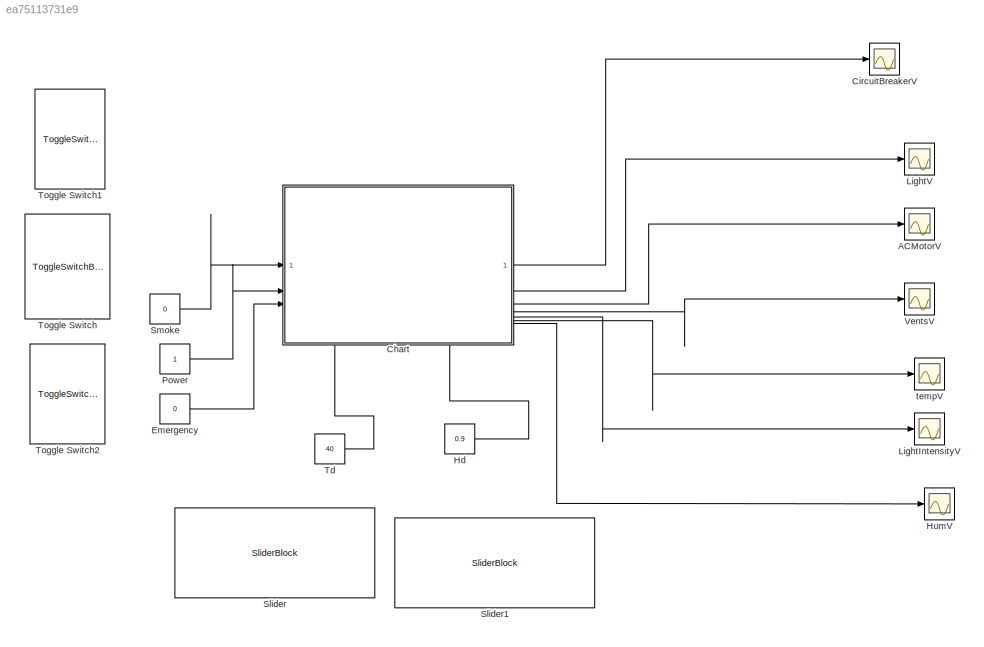
MODEL slx_ea75113731e9
KIND model
CONFIG AbsTol = auto
CONFIG EnableMultiTasking = on
CONFIG FixedStep = 0.01
CONFIG MaxStep = auto
CONFIG MinStep = auto
CONFIG RelTol = 1e-3
CONFIG SampleTimeConstraint = Unconstrained
CONFIG SolverName = ode4
CONFIG StartTime = 0.0
CONFIG StopTime = inf
BLOCK [Scope] ACMotorV
  Floating = off
  NumInputPorts = 1
  ScopeSpecificationString = Simulink.scopes.TimeScopeBlockCfg('CurrentConfiguration', extmgr.ConfigurationSet(extmgr.Configuration('Core','General UI',true),extmgr.Configuration('Core','Source UI',true),extmgr.Configuration('Sources','WiredSimulink',true,'DataLoggingVariableName','ScopeData2'),extmgr.Configuration('Visuals','Time Domain',true,'SerializedDisplays',{struct('MinYLimReal','1156.25','MaxYLimReal','3156.25','YLabe...<+1448ch>
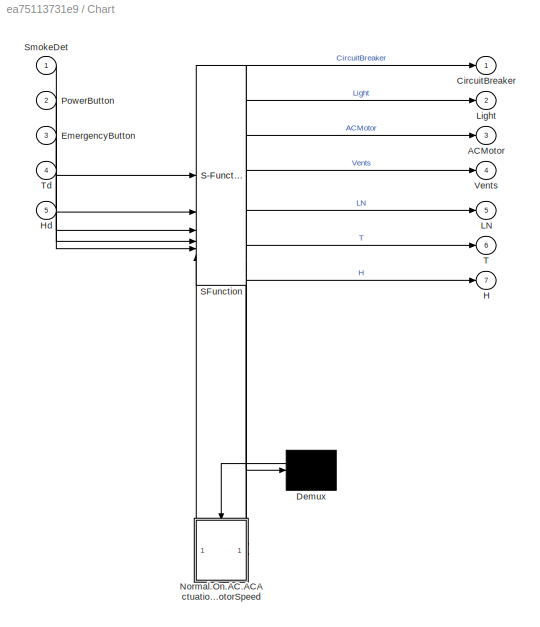
BLOCK [SubSystem] Chart
  ErrorFcn = Stateflow.Translate.translate
  PermitHierarchicalResolution = ExplicitOnly
  PortSchema = {"entries":[{"content":{"sides":[{"content":{"connectorIds":["In1","In2","In3"]},"type":"ConnectorPlacement.EquallySpacedRectSide","uuid":"5cb868e6-5551-4fae-9f9a-b14f0c4a41d3"},{"content":{"connectorIds":["Out1","Out2","Out3","Out4","Out6","Out5","Out7"],"side":"RIGHT"},"type":"ConnectorPlacement.EquallySpacedRectSide","uuid":"822cf98d-9f25-4796-a860-f61431df4421"},{"content":{"connectorIds":[],"...<+449ch>
  SFBlockType = Chart
  TreatAsAtomicUnit = on
BLOCK [Demux] Chart/ Demux 
  Outputs = 1
BLOCK [S-Function] Chart/ SFunction 
  EnableBusSupport = on
  FunctionName = sf_sfun
  PortCounts = [6 10]
  SFcnIsStateOwnerBlock = off
  SFunctionDeploymentMode = off
  Tag = Stateflow S-Function 3
BLOCK [Outport] Chart/ACMotor
  Port = 3
BLOCK [Outport] Chart/CircuitBreaker
BLOCK [Inport] Chart/EmergencyButton
  Port = 3
BLOCK [Outport] Chart/H
  Port = 7
BLOCK [Inport] Chart/Hd
  Port = 5
BLOCK [Outport] Chart/LN
  Port = 5
BLOCK [Outport] Chart/Light
  Port = 2
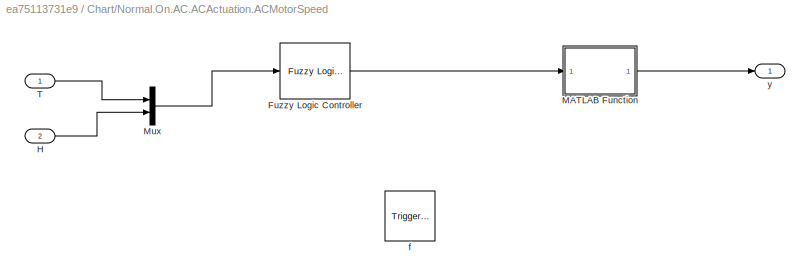
BLOCK [SubSystem] Chart/Normal.On.AC.ACActuation.ACMotorSpeed
  PreDeleteFcn = Stateflow.SLINSF.SimulinkMan.removePreDeleteFcn
  UndoDeleteFcn = Stateflow.SLINSF.SimulinkMan.restorePreDeleteFcn
BLOCK [Reference] Chart/Normal.On.AC.ACActuation.ACMotorSpeed/Fuzzy Logic Controller  REF=fuzblock/Fuzzy Logic   (lib defined in mdl_858b3b3e7478)
Controller
  SourceBlock = fuzblock/Fuzzy Logic \nController
  SourceType = Fuzzy Inference System
BLOCK [Inport] Chart/Normal.On.AC.ACActuation.ACMotorSpeed/H
  OutDataTypeStr = double
  Port = 2
  PortDimensions = 1
  SignalType = real
  VarSizeSig = No
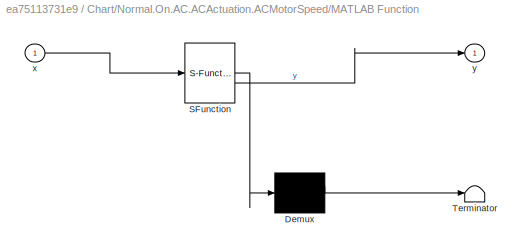
BLOCK [SubSystem] Chart/Normal.On.AC.ACActuation.ACMotorSpeed/MATLAB Function
  ErrorFcn = Stateflow.Translate.translate
  LibrarySourceBlock = simulink/User-Defined\nFunctions/MATLAB Function
  PermitHierarchicalResolution = ExplicitOnly
  SFBlockType = MATLAB Function
  TreatAsAtomicUnit = on
BLOCK [Demux] Chart/Normal.On.AC.ACActuation.ACMotorSpeed/MATLAB Function/ Demux 
  Outputs = 1
BLOCK [S-Function] Chart/Normal.On.AC.ACActuation.ACMotorSpeed/MATLAB Function/ SFunction 
  EnableBusSupport = off
  FunctionName = sf_sfun
  PortCounts = [1 2]
  SFcnIsStateOwnerBlock = off
  SFunctionDeploymentMode = off
  Tag = Stateflow S-Function 2
BLOCK [Terminator] Chart/Normal.On.AC.ACActuation.ACMotorSpeed/MATLAB Function/ Terminator 
BLOCK [Inport] Chart/Normal.On.AC.ACActuation.ACMotorSpeed/MATLAB Function/x
BLOCK [Outport] Chart/Normal.On.AC.ACActuation.ACMotorSpeed/MATLAB Function/y
BLOCK [Mux] Chart/Normal.On.AC.ACActuation.ACMotorSpeed/Mux
  DisplayOption = bar
  Inputs = 2
BLOCK [Inport] Chart/Normal.On.AC.ACActuation.ACMotorSpeed/T
  OutDataTypeStr = double
  PortDimensions = 1
  SignalType = real
  VarSizeSig = No
BLOCK [TriggerPort] Chart/Normal.On.AC.ACActuation.ACMotorSpeed/f
  CopyFcn = Stateflow.SLINSF.SimulinkMan.removeBlockPreDeleteFcn
  PreDeleteFcn = Stateflow.SLINSF.SimulinkMan.unsafePredeleteFcn
  StatesWhenEnabling = held
  TriggerType = function-call
  VariantControl = (inherit)
BLOCK [Outport] Chart/Normal.On.AC.ACActuation.ACMotorSpeed/y
BLOCK [Inport] Chart/PowerButton
  Port = 2
BLOCK [Inport] Chart/SmokeDet
BLOCK [Outport] Chart/T
  Port = 6
BLOCK [Inport] Chart/Td
  Port = 4
BLOCK [Outport] Chart/Vents
  Port = 4
BLOCK [Scope] CircuitBreakerV
  Floating = off
  NumInputPorts = 1
  ScopeSpecificationString = Simulink.scopes.TimeScopeBlockCfg('CurrentConfiguration', extmgr.ConfigurationSet(extmgr.Configuration('Core','General UI',true),extmgr.Configuration('Core','Source UI',true),extmgr.Configuration('Sources','WiredSimulink',true),extmgr.Configuration('Visuals','Time Domain',true,'SerializedDisplays',{struct('MinYLimReal','-1.00000','MaxYLimReal','1.00000','YLabelReal','','MinYLimMag','0.00000','MaxY...<+1366ch>
BLOCK [Constant] Emergency
  Value = 0
BLOCK [Constant] Hd
  Value = 0.9
BLOCK [Scope] HumV
  Floating = off
  NumInputPorts = 1
  ScopeSpecificationString = Simulink.scopes.TimeScopeBlockCfg('CurrentConfiguration', extmgr.ConfigurationSet(extmgr.Configuration('Core','General UI',true),extmgr.Configuration('Core','Source UI',true),extmgr.Configuration('Sources','WiredSimulink',true,'DataLoggingVariableName','ScopeData3'),extmgr.Configuration('Visuals','Time Domain',true,'SerializedDisplays',{struct('MinYLimReal','0.80026','MaxYLimReal','1.00026','YLabe...<+1416ch>
BLOCK [Scope] LightIntensityV
  Floating = off
  NumInputPorts = 1
  ScopeSpecificationString = Simulink.scopes.TimeScopeBlockCfg('CurrentConfiguration', extmgr.ConfigurationSet(extmgr.Configuration('Core','General UI',true),extmgr.Configuration('Core','Source UI',true),extmgr.Configuration('Sources','WiredSimulink',true,'DataLoggingVariableName','ScopeData2'),extmgr.Configuration('Visuals','Time Domain',true,'SerializedDisplays',{struct('MinYLimReal','1.46252','MaxYLimReal','1.5377','YLabel...<+1410ch>
BLOCK [Scope] LightV
  Floating = off
  NumInputPorts = 1
  ScopeSpecificationString = Simulink.scopes.TimeScopeBlockCfg('CurrentConfiguration', extmgr.ConfigurationSet(extmgr.Configuration('Core','General UI',true),extmgr.Configuration('Core','Source UI',true),extmgr.Configuration('Sources','WiredSimulink',true,'DataLoggingVariableName','ScopeData1'),extmgr.Configuration('Visuals','Time Domain',true,'SerializedDisplays',{struct('MinYLimReal','90.00000','MaxYLimReal','110.00000','YL...<+1429ch>
BLOCK [Constant] Power
BLOCK [SliderBlock] Slider
BLOCK [SliderBlock] Slider1
  ScaleMax = 1
BLOCK [Constant] Smoke
  Value = 0
BLOCK [Constant] Td
  Value = 40
BLOCK [ToggleSwitchBlock] Toggle Switch
BLOCK [ToggleSwitchBlock] Toggle Switch1
BLOCK [ToggleSwitchBlock] Toggle Switch2
BLOCK [Scope] VentsV
  Floating = off
  NumInputPorts = 1
  ScopeSpecificationString = Simulink.scopes.TimeScopeBlockCfg('CurrentConfiguration', extmgr.ConfigurationSet(extmgr.Configuration('Core','General UI',true),extmgr.Configuration('Core','Source UI',true),extmgr.Configuration('Sources','WiredSimulink',true,'DataLoggingVariableName','ScopeData3'),extmgr.Configuration('Visuals','Time Domain',true,'SerializedDisplays',{struct('MinYLimReal','-1.00000','MaxYLimReal','1.00000','YLab...<+1370ch>
BLOCK [Scope] tempV
  Floating = off
  NumInputPorts = 1
  ScopeSpecificationString = Simulink.scopes.TimeScopeBlockCfg('CurrentConfiguration', extmgr.ConfigurationSet(extmgr.Configuration('Core','General UI',true),extmgr.Configuration('Core','Source UI',true),extmgr.Configuration('Sources','WiredSimulink',true,'DataLoggingVariableName','ScopeData1'),extmgr.Configuration('Visuals','Time Domain',true,'SerializedDisplays',{struct('MinYLimReal','30.27329','MaxYLimReal','50.27329','YLa...<+1425ch>
LINE Chart:1 -> CircuitBreakerV:1
LINE Chart:2 -> LightV:1
LINE Chart:3 -> ACMotorV:1
LINE Chart:4 -> VentsV:1
LINE Chart:5 -> LightIntensityV:1
LINE Chart:6 -> tempV:1
LINE Chart:7 -> HumV:1
LINE Emergency:1 -> Chart:3
LINE Hd:1 -> Chart:5
LINE Power:1 -> Chart:2
LINE Smoke:1 -> Chart:1
LINE Td:1 -> Chart:4
CHART Chart/Normal.On.AC.ACActuation.ACMotorSpeed/MATLAB Function states=1 transitions=1
  STATE_LABEL 'eML_blk_kernel()'
  STATE_LABEL 'SCRIPT:\nfunction y = fcn(x)\ny = 1725*(1-x)+1725;\n'
CHART Chart states=27 transitions=32
  STATE_LABEL 'Normal\nentry:\nVents = 0;\nCircuitBreaker = 0;'
  STATE_LABEL 'On'
  STATE_LABEL 'Light'
  STATE_LABEL 'LightSensing'
  STATE_LABEL 'Day\ndu:\nLN_dot = LN /100;'
  STATE_LABEL 'Night\ndu:\nLN_dot = -LN/100;'
  STATE_LABEL '[LN > 100]'
  STATE_LABEL '[LN < 1]'
  STATE_LABEL 'LightActuation'
  STATE_LABEL 'Zero\nentry:\nLight = 0;\n%0 dark\n%100 light\n'
  STATE_LABEL 'Quarter\nentry:\nLight = 25;'
  STATE_LABEL 'Half\nentry:\nLight = 50;'
  STATE_LABEL 'Maximum\nentry:\nLight = 100;'
  STATE_LABEL 'ThreeQuarter\nentry:\nLight = 75;'
  STATE_LABEL '[LN < 75]'
  STATE_LABEL '[LN < 100]'
  STATE_LABEL '[LN >= 100]'
  STATE_LABEL '[LN >= 75]'
  STATE_LABEL '[LN >= 50]'
  STATE_LABEL '[LN < 50]'
  STATE_LABEL '[LN < 25]'
  STATE_LABEL '[LN >= 25]'
  STATE_LABEL 'H'
  STATE_LABEL 'AC'
  STATE_LABEL 'TempSensing'
  STATE_LABEL 'Tout = int_num(Tin)'
  STATE_LABEL 'SCRIPT:\nfunction Tout = int_num(Tin)\nTout = floor(Tin);\nend'
  STATE_LABEL 'Below\ndu:\nT_dot = -T;'
  STATE_LABEL 'Over\ndu:\nT_dot = 100 - T;'
  STATE_LABEL 'Regulated\ndu:\nT_dot = 0;'
  STATE_LABEL '[int_num(T) > int_num(Td)]'
  STATE_LABEL '[int_num(T) < int_num(Td)]'
  STATE_LABEL '[(int_num(T) - int_num(Td) == 0) && (-T < 0) && (100 - T > 0)]'
  STATE_LABEL '[int_num(T) > int_num(Td)]'
  STATE_LABEL '[(int_num(T) - int_num(Td) == 0) && (-T < 0) && (100 - T > 0)]'
  STATE_LABEL '[int_num(T) < int_num(Td)]'
  STATE_LABEL 'ACActuation\ndu:\nACMotor = ACMotorSpeed(T,H);\n'
  STATE_LABEL 'y = ACMotorSpeed(T,H)'
  STATE_LABEL 'HumSensing'
  STATE_LABEL 'Hout = dec_num(Hin)'
CHART  states=0 transitions=0
CHART  states=0 transitions=0
